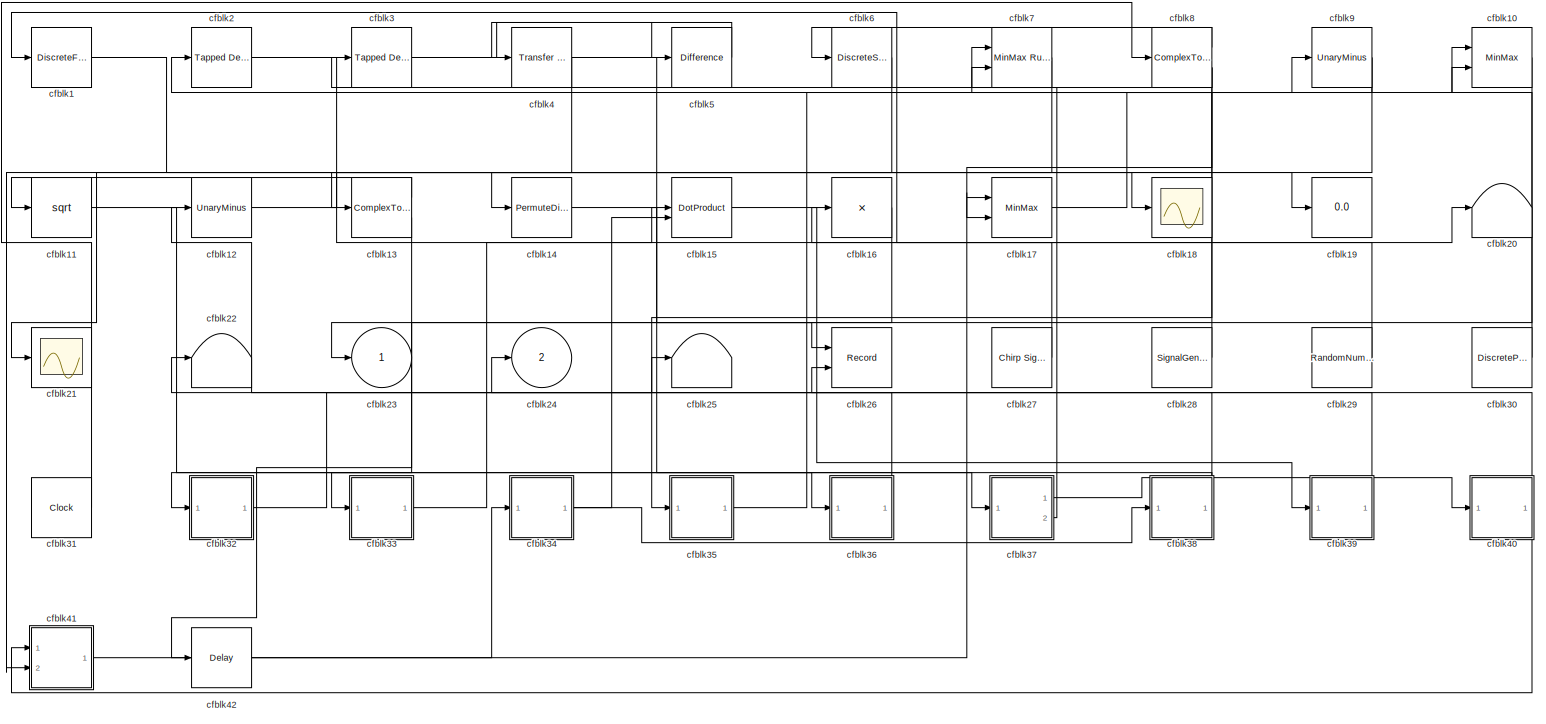
[diagram: root canvas - part 1/1, most of the canvas]
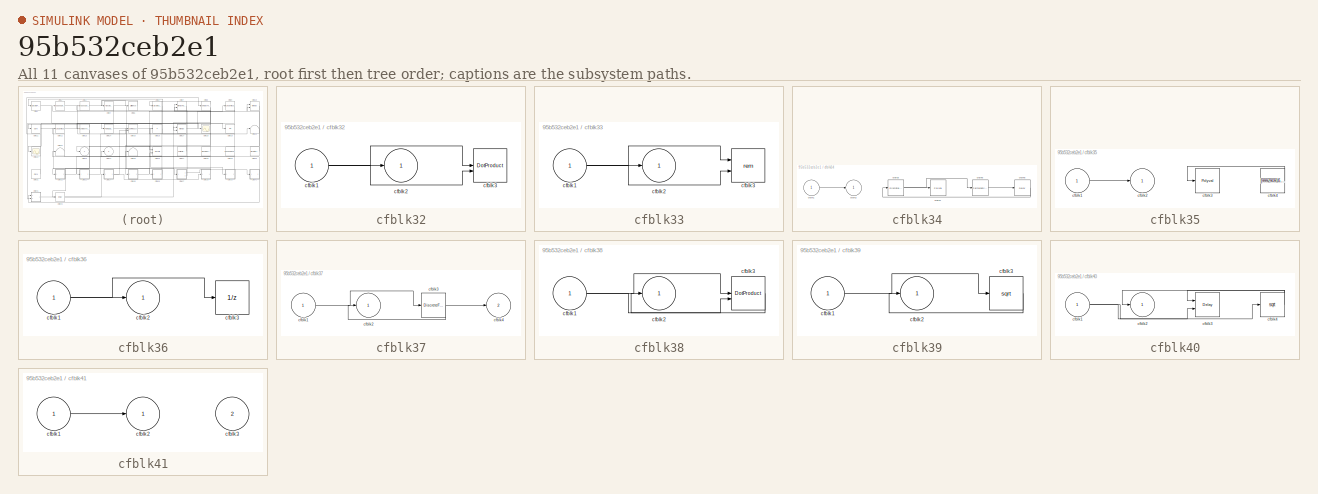
[diagram: thumbnail index - all 11 canvases of the model, root first then tree order]
MODEL slx_95b532ceb2e1
KIND model
CONFIG AbsTol = auto
CONFIG EnableMultiTasking = off
CONFIG FixedStep = auto
CONFIG MaxStep = auto
CONFIG MinStep = auto
CONFIG RelTol = 1e-3
CONFIG SampleTimeConstraint = Unconstrained
CONFIG SolverName = VariableStepAuto
CONFIG StartTime = 0.0
CONFIG StopTime = 10.0
BLOCK [DiscreteFir] cfblk1
  InputPortMap = u0
  OutputPortMap = o0
  Ports = [1, 1]
  SampleTime = 1
BLOCK [MinMax] cfblk10
  Inputs = 2
  Ports = [2, 1]
BLOCK [Sqrt] cfblk11
BLOCK [UnaryMinus] cfblk12
BLOCK [ComplexToMagnitudeAngle] cfblk13
  Ports = [1, 2]
BLOCK [PermuteDimensions] cfblk14
BLOCK [DotProduct] cfblk15
  OutDataTypeStr = Inherit: Inherit via internal rule
BLOCK [Product] cfblk16
  Inputs = *
  Ports = [1, 1]
BLOCK [MinMax] cfblk17
  Inputs = 2
  Ports = [2, 1]
BLOCK [Scope] cfblk18
  Floating = off
  NumInputPorts = 1
  Ports = [1]
BLOCK [Display] cfblk19
  Decimation = 1
  Ports = [1]
BLOCK [Reference] cfblk2  REF=simulink/Discrete/Tapped Delay
  Ports = [1, 1]
  SourceBlock = simulink/Discrete/Tapped Delay
  SourceProductBaseCode = SL
  SourceType = Tapped Delay Line
BLOCK [Terminator] cfblk20
BLOCK [Scope] cfblk21
  Floating = off
  NumInputPorts = 1
  Ports = [1]
BLOCK [Terminator] cfblk22
BLOCK [Outport] cfblk23
BLOCK [Outport] cfblk24
  Port = 2
BLOCK [Terminator] cfblk25
BLOCK [Record] cfblk26
  CompatibilityTag = XY
  FileSettingsInternal = {"entries":[{"content":{"excelSettings":{"content":{},"type":"Streamout.ExcelSettings"}},"type":"Streamout.FileSettingStorage","uuid":"aa137edb-8c83-442c-be50-530a3e74da26"}],"packageUris":["http://schema.mathworks.com/mf0/streamout_blocks/R2020a"],"version":"1.0"}
  Layout = [1 1]
  Ports = [2]
  SignalsInternal = {"entries":[{"content":{"signals":[{"content":{"blockPath":["sampleModel216/cfblk26"],"channel":[],"dimensions":[1],"domain":"sampleModel216/cfblk26","lineColor":"#a2142f","plots":[1],"port":1,"sid":[""],"signalID":8335,"signalName":"cfblk4"},"type":"RecordBlkView.Signal","uuid":"69c20124-19ff-4eef-a6c2-fd2fba1449b7"},{"content":{"blockPath":["sampleModel216/cfblk26"],"channel":[],"dimensions":[1]...<+382ch>
  VisualizationBindings = {"xyplotplugin":{"info":[{"series":[{"bindingParametersList":[{"parameter":"X-Axis","signalID":8335,"signalName":"cfblk4"},{"parameter":"Y-Axis","signalID":8339,"signalName":"cfblk40"}],"seriesID":50935}],"subplotID":1}]}}
BLOCK [Reference] cfblk27  REF=simulink/Sources/Chirp Signal
  Ports = [0, 1]
  SourceBlock = simulink/Sources/Chirp Signal
  SourceProductBaseCode = SL
  SourceType = chirp
BLOCK [SignalGenerator] cfblk28
  Amplitude = [-817096306.845178]
  Ports = [0, 1]
  Units = rad/sec
  WaveForm = sawtooth
BLOCK [RandomNumber] cfblk29
  Mean = [-17177.912426]
  SampleTime = 0.1
  Seed = [361282231.000000]
  Variance = [55449.262535]
BLOCK [Reference] cfblk3  REF=simulink/Discrete/Tapped Delay
  Ports = [1, 1]
  SourceBlock = simulink/Discrete/Tapped Delay
  SourceProductBaseCode = SL
  SourceType = Tapped Delay Line
BLOCK [DiscretePulseGenerator] cfblk30
  Amplitude = [627509157.809357]
  Period = [95771482.309183]
  PhaseDelay = [7.000000]
  Ports = [0, 1]
  PulseType = Time based
  PulseWidth = 5
BLOCK [Clock] cfblk31
BLOCK [SubSystem] cfblk32
  Ports = [1, 1]
  RequestExecContextInheritance = off
BLOCK [Inport] cfblk32/cfblk1
BLOCK [Outport] cfblk32/cfblk2
BLOCK [DotProduct] cfblk32/cfblk3
  OutDataTypeStr = Inherit: Inherit via internal rule
BLOCK [SubSystem] cfblk33
  Ports = [1, 1]
  RequestExecContextInheritance = off
BLOCK [Inport] cfblk33/cfblk1
BLOCK [Outport] cfblk33/cfblk2
BLOCK [Math] cfblk33/cfblk3
  Operator = rem
  Ports = [2, 1]
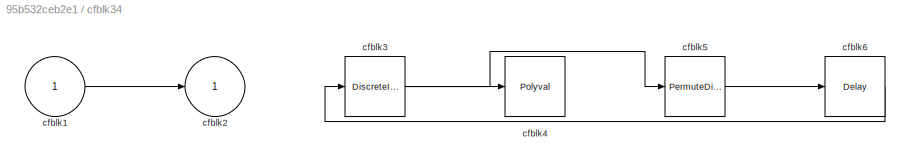
BLOCK [SubSystem] cfblk34
  Ports = [1, 1]
  RequestExecContextInheritance = off
BLOCK [Inport] cfblk34/cfblk1
BLOCK [Outport] cfblk34/cfblk2
BLOCK [DiscreteIntegrator] cfblk34/cfblk3
  ICPrevOutput = DiscIntNeverNeededParam
  ICPrevScaledInput = DiscIntNeverNeededParam
  InitialConditionSetting = Auto
  Ports = [1, 1]
BLOCK [Polyval] cfblk34/cfblk4
  Coefs = [ +2.081618890e-019, -1.441693666e-014, +4.719686976e-010, -8.536869453e-006, +1.621573104e-001, -8.087801117e+001 ]
BLOCK [PermuteDimensions] cfblk34/cfblk5
BLOCK [Delay] cfblk34/cfblk6
  InputPortMap = u0
  Ports = [1, 1]
  SampleTime = 1
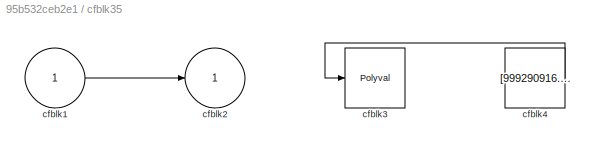
BLOCK [SubSystem] cfblk35
  Ports = [1, 1]
  RequestExecContextInheritance = off
BLOCK [Inport] cfblk35/cfblk1
BLOCK [Outport] cfblk35/cfblk2
BLOCK [Polyval] cfblk35/cfblk3
  Coefs = [ +2.081618890e-019, -1.441693666e-014, +4.719686976e-010, -8.536869453e-006, +1.621573104e-001, -8.087801117e+001 ]
BLOCK [Constant] cfblk35/cfblk4
  SampleTime = 1
  Value = [999290916.104129]
BLOCK [SubSystem] cfblk36
  Ports = [1, 1]
  RequestExecContextInheritance = off
BLOCK [Inport] cfblk36/cfblk1
BLOCK [Outport] cfblk36/cfblk2
BLOCK [UnitDelay] cfblk36/cfblk3
  HasFrameUpgradeWarning = on
BLOCK [SubSystem] cfblk37
  Ports = [1, 2]
  RequestExecContextInheritance = off
BLOCK [Inport] cfblk37/cfblk1
BLOCK [Outport] cfblk37/cfblk2
BLOCK [DiscreteFir] cfblk37/cfblk3
  InputPortMap = u0
  OutputPortMap = o0
  Ports = [1, 1]
  SampleTime = 1
BLOCK [Outport] cfblk37/cfblk4
  Port = 2
BLOCK [SubSystem] cfblk38
  Ports = [1, 1]
  RequestExecContextInheritance = off
BLOCK [Inport] cfblk38/cfblk1
BLOCK [Outport] cfblk38/cfblk2
BLOCK [DotProduct] cfblk38/cfblk3
  OutDataTypeStr = Inherit: Inherit via internal rule
BLOCK [SubSystem] cfblk39
  Ports = [1, 1]
  RequestExecContextInheritance = off
BLOCK [Inport] cfblk39/cfblk1
BLOCK [Outport] cfblk39/cfblk2
BLOCK [Sqrt] cfblk39/cfblk3
BLOCK [Reference] cfblk4  REF=simulink/Discrete/Transfer Fcn
Real Zero
  Ports = [1, 1]
  SourceBlock = simulink/Discrete/Transfer Fcn\nReal Zero
  SourceProductBaseCode = SL
  SourceType = Transfer Fcn Real Zero
BLOCK [SubSystem] cfblk40
  Ports = [1, 1]
  RequestExecContextInheritance = off
BLOCK [Inport] cfblk40/cfblk1
BLOCK [Outport] cfblk40/cfblk2
BLOCK [Delay] cfblk40/cfblk3
  DelayLengthSource = Input port
  InputPortMap = u0,p1
  Ports = [2, 1]
  SampleTime = 1
BLOCK [Sqrt] cfblk40/cfblk4
BLOCK [SubSystem] cfblk41
  Ports = [2, 1]
  RequestExecContextInheritance = off
BLOCK [Inport] cfblk41/cfblk1
BLOCK [Outport] cfblk41/cfblk2
BLOCK [Inport] cfblk41/cfblk3
  Port = 2
BLOCK [Delay] cfblk42
  InputPortMap = u0
  Ports = [1, 1]
  SampleTime = 1
BLOCK [Reference] cfblk5  REF=simulink/Discrete/Difference
  Ports = [1, 1]
  SourceBlock = simulink/Discrete/Difference
  SourceProductBaseCode = SL
  SourceType = Difference
BLOCK [DiscreteStateSpace] cfblk6
BLOCK [Reference] cfblk7  REF=simulink/Math
Operations/MinMax
Running
Resettable
  Ports = [2, 1]
  SourceBlock = simulink/Math\nOperations/MinMax\nRunning\nResettable
  SourceProductBaseCode = SL
  SourceType = MinMax Running Resettable
BLOCK [ComplexToRealImag] cfblk8
  Ports = [1, 2]
BLOCK [UnaryMinus] cfblk9
LINE cfblk10:1 -> cfblk33:1
LINE cfblk11:1 -> cfblk37:1
LINE cfblk12:1 -> cfblk18:1
LINE cfblk13:1 -> cfblk11:1
LINE cfblk13:2 -> cfblk42:1
LINE cfblk14:1 -> cfblk36:1
LINE cfblk15:1 -> cfblk39:1
LINE cfblk16:1 -> cfblk23:1
LINE cfblk17:1 -> cfblk9:1
LINE cfblk1:1 -> cfblk19:1
LINE cfblk27:1 -> cfblk1:1
LINE cfblk28:1 -> cfblk2:1
LINE cfblk29:1 -> cfblk16:1
LINE cfblk2:1 -> cfblk15:1
LINE cfblk30:1 -> cfblk10:2
LINE cfblk31:1 -> cfblk8:1
NET cfblk32/cfblk1:1 -> cfblk32/cfblk2:1, cfblk32/cfblk3:1, cfblk32/cfblk3:2
LINE cfblk32:1 -> cfblk25:1
NET cfblk33/cfblk1:1 -> cfblk33/cfblk2:1, cfblk33/cfblk3:1, cfblk33/cfblk3:2
LINE cfblk33:1 -> cfblk20:1
LINE cfblk34/cfblk1:1 -> cfblk34/cfblk2:1
NET cfblk34/cfblk3:1 -> cfblk34/cfblk4:1, cfblk34/cfblk5:1
LINE cfblk34/cfblk5:1 -> cfblk34/cfblk6:1
LINE cfblk34/cfblk6:1 -> cfblk34/cfblk3:1
NET cfblk34:1 -> cfblk15:2, cfblk38:1
LINE cfblk35/cfblk1:1 -> cfblk35/cfblk2:1
LINE cfblk35/cfblk4:1 -> cfblk35/cfblk3:1
LINE cfblk35:1 -> cfblk10:1
NET cfblk36/cfblk1:1 -> cfblk36/cfblk2:1, cfblk36/cfblk3:1
LINE cfblk36:1 -> cfblk22:1
LINE cfblk37/cfblk1:1 -> cfblk37/cfblk3:1
NET cfblk37/cfblk3:1 -> cfblk37/cfblk2:1, cfblk37/cfblk4:1
LINE cfblk37:1 -> cfblk40:1
LINE cfblk37:2 -> cfblk7:1
NET cfblk38/cfblk1:1 -> cfblk38/cfblk3:1, cfblk38/cfblk3:2
LINE cfblk38/cfblk3:1 -> cfblk38/cfblk2:1
NET cfblk38:1 -> cfblk12:1, cfblk32:1
LINE cfblk39/cfblk1:1 -> cfblk39/cfblk3:1
LINE cfblk39/cfblk3:1 -> cfblk39/cfblk2:1
LINE cfblk39:1 -> cfblk24:1
LINE cfblk3:1 -> cfblk5:1
NET cfblk40/cfblk1:1 -> cfblk40/cfblk3:2, cfblk40/cfblk4:1
NET cfblk40/cfblk4:1 -> cfblk40/cfblk2:1, cfblk40/cfblk3:1
NET cfblk40:1 -> cfblk26:2, cfblk41:1
LINE cfblk41/cfblk1:1 -> cfblk41/cfblk2:1
LINE cfblk41:1 -> cfblk34:1
LINE cfblk42:1 -> cfblk17:1
NET cfblk4:1 -> cfblk21:1, cfblk26:1
LINE cfblk5:1 -> cfblk4:1
LINE cfblk6:1 -> cfblk14:1
LINE cfblk7:1 -> cfblk41:2
LINE cfblk8:1 -> cfblk6:1
NET cfblk8:2 -> cfblk17:2, cfblk35:1, cfblk3:1
NET cfblk9:1 -> cfblk13:1, cfblk7:2
note: NET lines group one-source signal fan-out (src -> all destinations, sorted); 1:1 wires keep LINE
